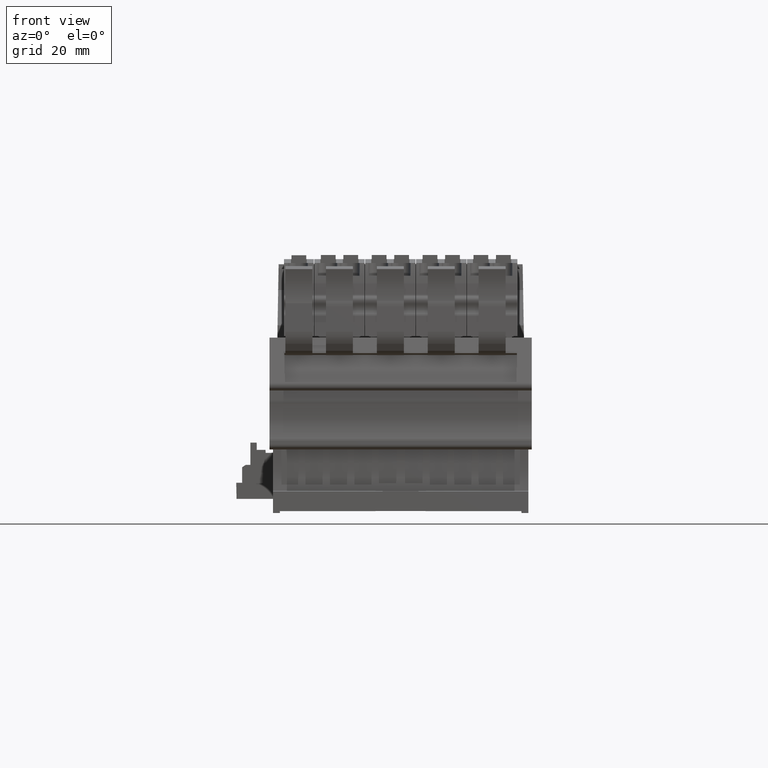
[diagram: clean part render]
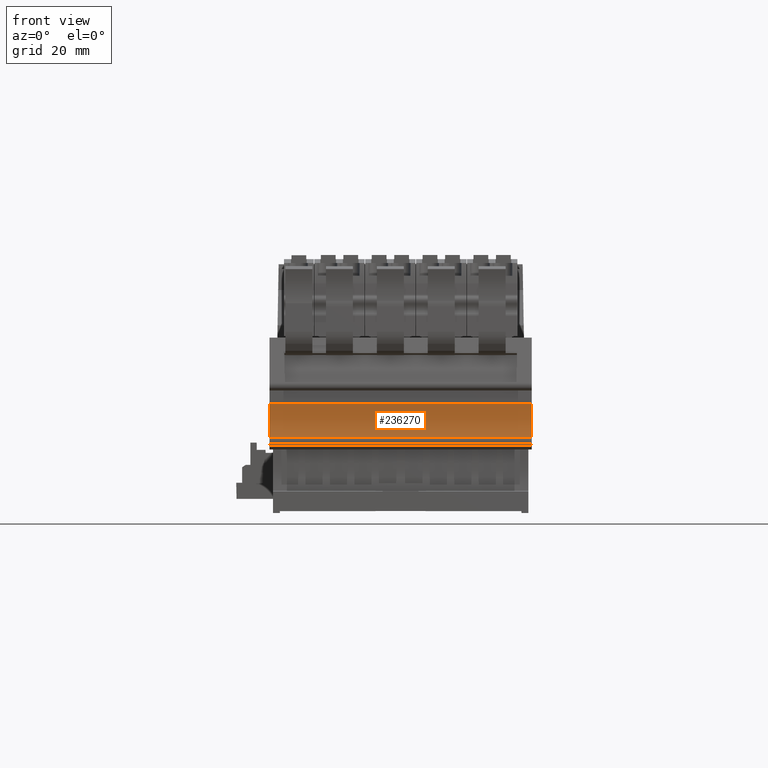
[diagram: same view with one face highlighted and labeled with its STEP entity id]
A machine part, front view. The second image highlights one B-rep face of the part: STEP entity #236270.
In plain terms, the highlighted cylindrical surface (partial cylindrical patch) has radius 15.05 mm, axis along (1, 0, -0).
Its self-contained STEP definition (entity closure, byte-faithful):
#5710=CARTESIAN_POINT('',(-36.1019093196634,11.3231314749401,
-49.8999999993831));
#5720=VERTEX_POINT('',#5710);
#5750=CARTESIAN_POINT('',(-50.271869805681,6.25216314671631,
-49.8999999992783));
#5760=DIRECTION('',(7.5885884426013E-12,9.3590051218711E-13,1.));
#5770=DIRECTION('',(0.992546151641307,0.121869343405273,
-7.64608183600652E-12));
#5780=AXIS2_PLACEMENT_3D('',#5750,#5760,#5770);
#5790=CIRCLE('',#5780,15.05);
#5800=CARTESIAN_POINT('',(-35.3360671920856,4.40167664643682,
-49.8999999993899));
#5810=VERTEX_POINT('',#5800);
#5820=EDGE_CURVE('',#5810,#5720,#5790,.T.);
#13800=CARTESIAN_POINT('',(-35.3360671916786,4.40167664648861,
3.7000000014267));
#13810=VERTEX_POINT('',#13800);
#13840=CARTESIAN_POINT('',(-50.2718698052742,6.25216314676647,
3.70000000153834));
#13850=DIRECTION('',(7.5885884426013E-12,9.3590051218711E-13,1.));
#13860=DIRECTION('',(0.992546151641307,0.121869343405273,
-7.64608183600653E-12));
#13870=AXIS2_PLACEMENT_3D('',#13840,#13850,#13860);
#13880=CIRCLE('',#13870,15.05);
#13890=CARTESIAN_POINT('',(-36.1019093192676,11.3231314749902,
3.70000000143348));
#13900=VERTEX_POINT('',#13890);
#13910=EDGE_CURVE('',#13810,#13900,#13880,.T.);
#235930=CARTESIAN_POINT('',(-36.1019093173771,11.3231314755357,
80.4499999992805));
#235940=DIRECTION('',(7.50284653573329E-12,9.77385265280061E-13,1.));
#235950=VECTOR('',#235940,1.);
#235960=LINE('',#235930,#235950);
#235970=EDGE_CURVE('',#5720,#13900,#235960,.T.);
#236110=CARTESIAN_POINT('',(-50.2718698046918,6.2521631468383,
80.4500000016183));
#236120=DIRECTION('',(7.5885884426013E-12,9.3590051218711E-13,1.));
#236130=DIRECTION('',(0.992546151641307,0.121869343405273,
-7.64608183600653E-12));
#236140=AXIS2_PLACEMENT_3D('',#236110,#236120,#236130);
#236150=CYLINDRICAL_SURFACE('',#236140,15.05);
#236160=ORIENTED_EDGE('',*,*,#235970,.F.);
#236170=ORIENTED_EDGE('',*,*,#13910,.T.);
#236180=CARTESIAN_POINT('',(-35.3360671910362,4.40167664655538,
80.4499999992815));
#236190=DIRECTION('',(7.50284653573329E-12,9.77385265280061E-13,1.));
#236200=VECTOR('',#236190,1.);
#236210=LINE('',#236180,#236200);
#236220=EDGE_CURVE('',#5810,#13810,#236210,.T.);
#236230=ORIENTED_EDGE('',*,*,#236220,.T.);
#236240=ORIENTED_EDGE('',*,*,#5820,.F.);
#236250=EDGE_LOOP('',(#236240,#236230,#236170,#236160));
#236260=FACE_OUTER_BOUND('',#236250,.T.);
#236270=ADVANCED_FACE('',(#236260),#236150,.F.);